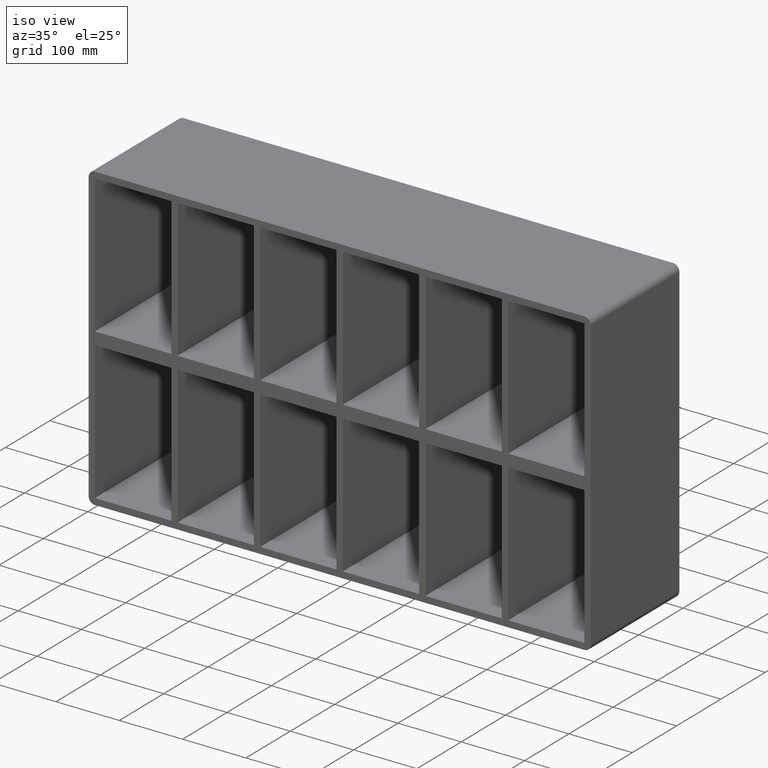
[diagram: clean part render]
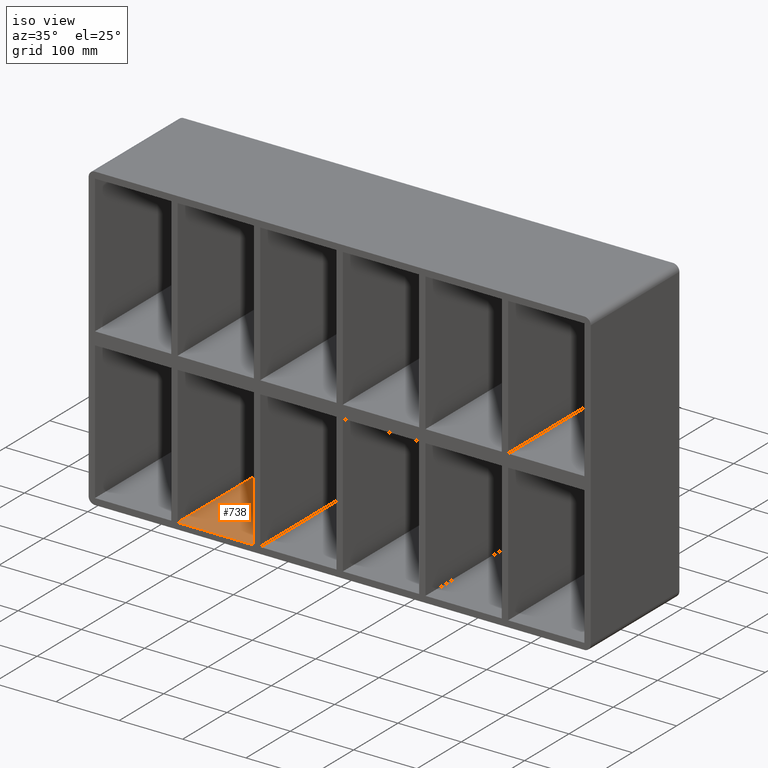
[diagram: same view with one face highlighted and labeled with its STEP entity id]
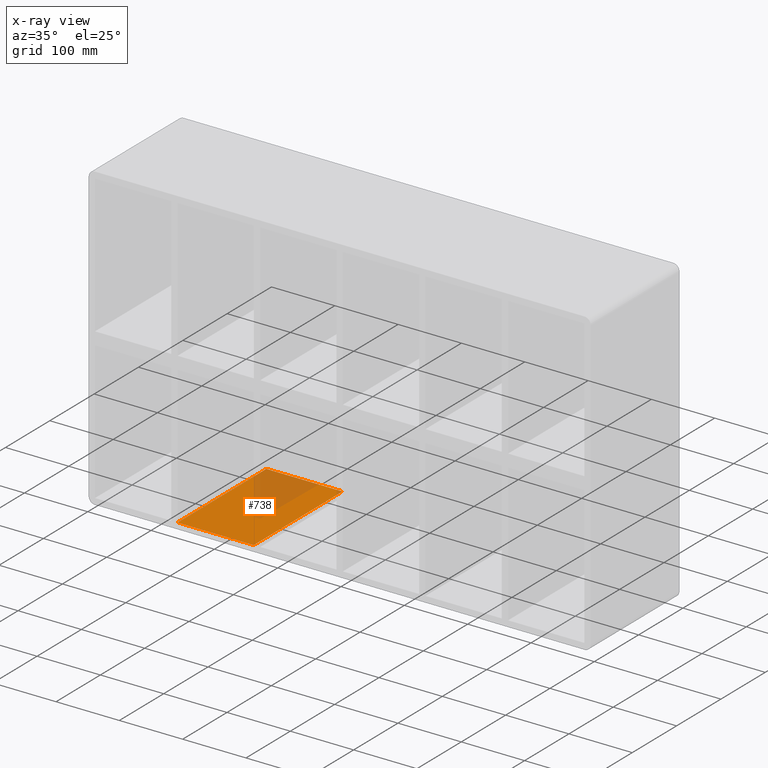
[diagram: x-ray of the same camera — body ghosted, the highlighted face saturated]
A machine part, iso view. The second image highlights one B-rep face of the part: STEP entity #738.
The next image is the same camera in x-ray: the body ghosted, the highlighted face saturated — about 29% of this face is hidden behind the body in this view.
In plain terms, the highlighted planar face has unit normal (0, 0, -1).
Its self-contained STEP definition (entity closure, byte-faithful):
#603=CARTESIAN_POINT('',(-135.50000000000122,197.0,-228.00000000000006));
#604=VERTEX_POINT('',#603);
#611=CARTESIAN_POINT('',(-135.50000000000122,-3.0,-228.00000000000006));
#612=VERTEX_POINT('',#611);
#613=CARTESIAN_POINT('',(-135.50000000000122,-3.0,-228.00000000000006));
#614=DIRECTION('',(0.0,1.0,0.0));
#615=VECTOR('',#614,199.99999999999997);
#616=LINE('',#613,#615);
#617=EDGE_CURVE('',#612,#604,#616,.T.);
#708=CARTESIAN_POINT('',(386.50000000000006,0.0,-228.00000000000006));
#709=DIRECTION('',(0.0,0.0,-1.0));
#710=DIRECTION('',(-1.0,0.0,0.0));
#711=AXIS2_PLACEMENT_3D('',#708,#709,#710);
#712=PLANE('',#711);
#713=ORIENTED_EDGE('',*,*,#617,.T.);
#714=CARTESIAN_POINT('',(-255.99999999998545,197.0,-227.9999999999705));
#715=VERTEX_POINT('',#714);
#716=CARTESIAN_POINT('',(-255.99999999998545,197.0,-228.00000000000006));
#717=DIRECTION('',(1.0,0.0,0.0));
#718=VECTOR('',#717,120.49999999998425);
#719=LINE('',#716,#718);
#720=EDGE_CURVE('',#715,#604,#719,.T.);
#721=ORIENTED_EDGE('',*,*,#720,.F.);
#722=CARTESIAN_POINT('',(-255.99999999998545,-3.0,-227.99999999997044));
#723=VERTEX_POINT('',#722);
#724=CARTESIAN_POINT('',(-255.99999999998545,196.99999999999997,-228.00000000000006));
#725=DIRECTION('',(0.0,-1.0,0.0));
#726=VECTOR('',#725,199.99999999999997);
#727=LINE('',#724,#726);
#728=EDGE_CURVE('',#715,#723,#727,.T.);
#729=ORIENTED_EDGE('',*,*,#728,.T.);
#730=CARTESIAN_POINT('',(-135.50000000000119,-3.0,-228.00000000000006));
#731=DIRECTION('',(-1.0,0.0,0.0));
#732=VECTOR('',#731,120.49999999998425);
#733=LINE('',#730,#732);
#734=EDGE_CURVE('',#612,#723,#733,.T.);
#735=ORIENTED_EDGE('',*,*,#734,.F.);
#736=EDGE_LOOP('',(#713,#721,#729,#735));
#737=FACE_OUTER_BOUND('',#736,.T.);
#738=ADVANCED_FACE('',(#737),#712,.F.);